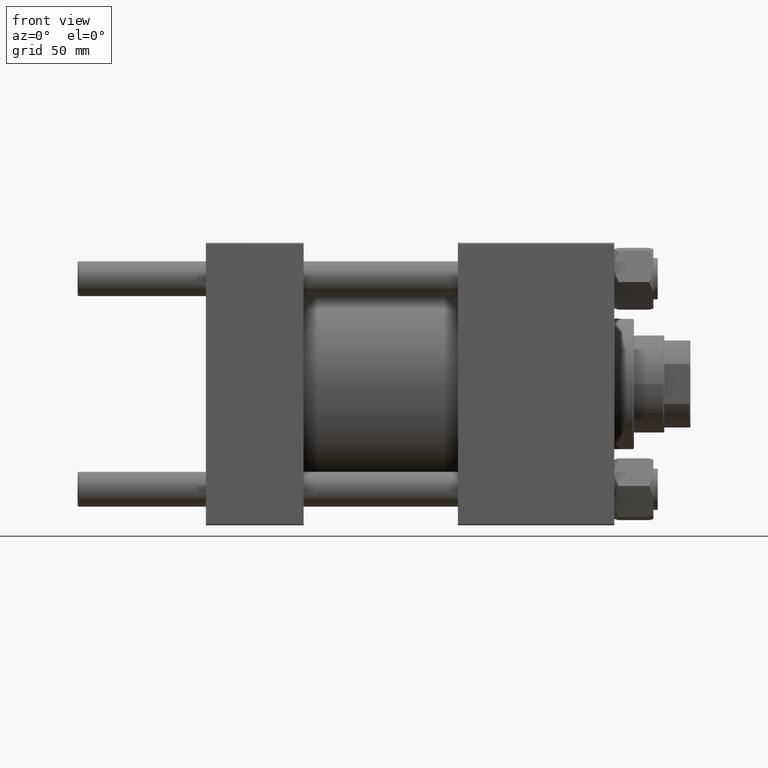
[diagram: clean part render]
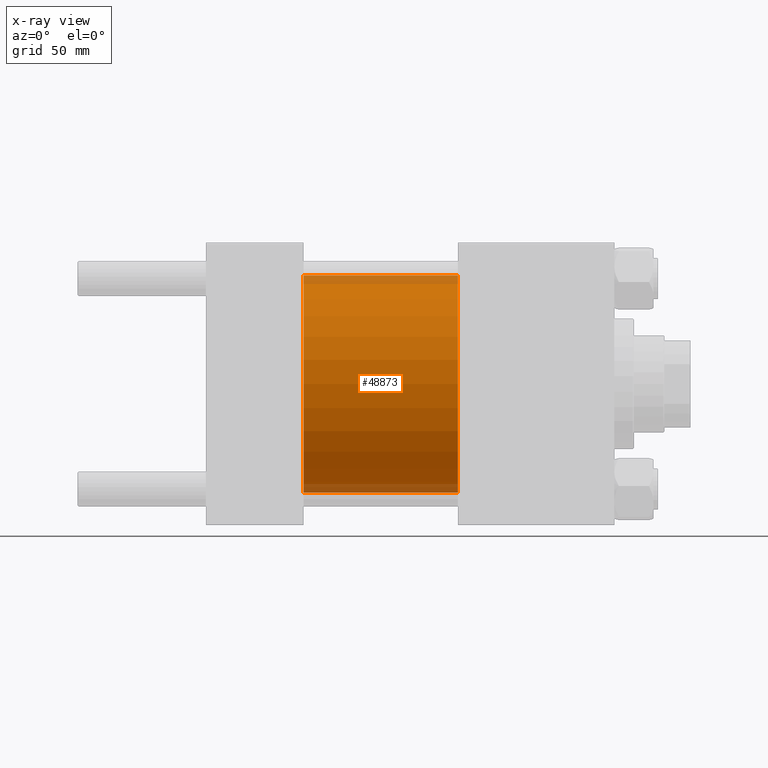
[diagram: x-ray — body ghosted, one internal face saturated and labeled with its STEP entity id]
A machine part, front view, then the same camera in x-ray: the body is ghosted and one INTERNAL B-rep face — a face not visible from any outside direction — is saturated and labeled: STEP entity #48873.
In plain terms, the highlighted cylindrical surface (partial cylindrical patch) has radius 50 mm, axis along (-1, -0, -0).
Its self-contained STEP definition (entity closure, byte-faithful):
#60 = ORIENTED_EDGE ( 'NONE', *, *, #41822, .F. ) ;
#1418 = EDGE_LOOP ( 'NONE', ( #49351, #25891, #3159, #60 ) ) ;
#3159 = ORIENTED_EDGE ( 'NONE', *, *, #15664, .F. ) ;
#4599 = DIRECTION ( 'NONE',  ( -1.000000000000000000, -0.000000000000000000, -0.000000000000000000 ) ) ;
#7411 = FACE_OUTER_BOUND ( 'NONE', #1418, .T. ) ;
#7764 = DIRECTION ( 'NONE',  ( -1.000000000000000000, -0.000000000000000000, -0.000000000000000000 ) ) ;
#8260 = CARTESIAN_POINT ( 'NONE',  ( 115.9999999999999858, 6.123233995736766085E-15, -50.00000000000000000 ) ) ;
#9369 = AXIS2_PLACEMENT_3D ( 'NONE', #25757, #10459, #18357 ) ;
#10459 = DIRECTION ( 'NONE',  ( 1.000000000000000000, 0.000000000000000000, 0.000000000000000000 ) ) ;
#13443 = DIRECTION ( 'NONE',  ( 0.000000000000000000, 0.000000000000000000, -1.000000000000000000 ) ) ;
#15664 = EDGE_CURVE ( 'NONE', #42231, #19599, #29705, .T. ) ;
#16883 = CARTESIAN_POINT ( 'NONE',  ( 45.00000000000000000, 6.123233995736766085E-15, -50.00000000000000000 ) ) ;
#18357 = DIRECTION ( 'NONE',  ( 0.000000000000000000, 0.000000000000000000, -1.000000000000000000 ) ) ;
#19599 = VERTEX_POINT ( 'NONE', #16883 ) ;
#22295 = AXIS2_PLACEMENT_3D ( 'NONE', #32829, #48403, #13443 ) ;
#25757 = CARTESIAN_POINT ( 'NONE',  ( 45.00000000000000000, 0.000000000000000000, 0.000000000000000000 ) ) ;
#25891 = ORIENTED_EDGE ( 'NONE', *, *, #28325, .T. ) ;
#27393 = LINE ( 'NONE', #8260, #31648 ) ;
#28325 = EDGE_CURVE ( 'NONE', #50392, #19599, #27393, .T. ) ;
#29705 = CIRCLE ( 'NONE', #9369, 50.00000000000000000 ) ;
#31648 = VECTOR ( 'NONE', #7764, 1000.000000000000000 ) ;
#32453 = CARTESIAN_POINT ( 'NONE',  ( 115.9999999999999858, 6.123233995736766085E-15, -50.00000000000000000 ) ) ;
#32829 = CARTESIAN_POINT ( 'NONE',  ( 115.9999999999999858, 0.000000000000000000, 0.000000000000000000 ) ) ;
#32868 = VECTOR ( 'NONE', #41862, 1000.000000000000000 ) ;
#33014 = LINE ( 'NONE', #44761, #32868 ) ;
#33803 = AXIS2_PLACEMENT_3D ( 'NONE', #39547, #4599, #35723 ) ;
#34714 = CYLINDRICAL_SURFACE ( 'NONE', #33803, 50.00000000000000000 ) ;
#35723 = DIRECTION ( 'NONE',  ( 0.000000000000000000, 0.000000000000000000, 1.000000000000000000 ) ) ;
#37781 = CIRCLE ( 'NONE', #22295, 50.00000000000000000 ) ;
#39231 = VERTEX_POINT ( 'NONE', #46866 ) ;
#39547 = CARTESIAN_POINT ( 'NONE',  ( 115.9999999999999858, 0.000000000000000000, 0.000000000000000000 ) ) ;
#41822 = EDGE_CURVE ( 'NONE', #39231, #42231, #33014, .T. ) ;
#41862 = DIRECTION ( 'NONE',  ( -1.000000000000000000, -0.000000000000000000, -0.000000000000000000 ) ) ;
#42231 = VERTEX_POINT ( 'NONE', #48525 ) ;
#42474 = EDGE_CURVE ( 'NONE', #39231, #50392, #37781, .T. ) ;
#44761 = CARTESIAN_POINT ( 'NONE',  ( 115.9999999999999858, 0.000000000000000000, 50.00000000000000000 ) ) ;
#46866 = CARTESIAN_POINT ( 'NONE',  ( 115.9999999999999858, 0.000000000000000000, 50.00000000000000000 ) ) ;
#48403 = DIRECTION ( 'NONE',  ( 1.000000000000000000, 0.000000000000000000, 0.000000000000000000 ) ) ;
#48525 = CARTESIAN_POINT ( 'NONE',  ( 45.00000000000000000, 0.000000000000000000, 50.00000000000000000 ) ) ;
#48873 = ADVANCED_FACE ( 'NONE', ( #7411 ), #34714, .F. ) ;
#49351 = ORIENTED_EDGE ( 'NONE', *, *, #42474, .T. ) ;
#50392 = VERTEX_POINT ( 'NONE', #32453 ) ;